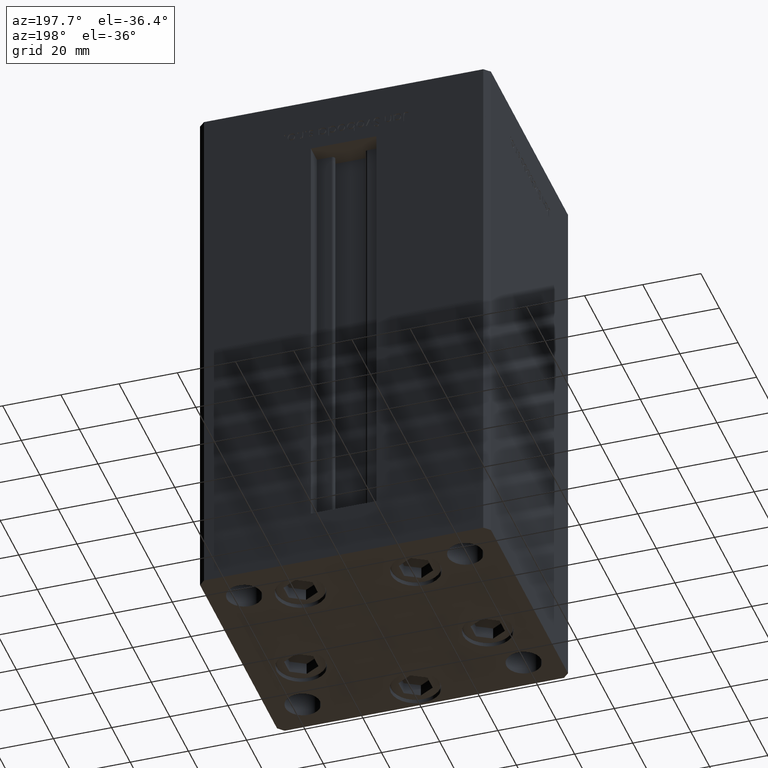
[diagram: clean part render]
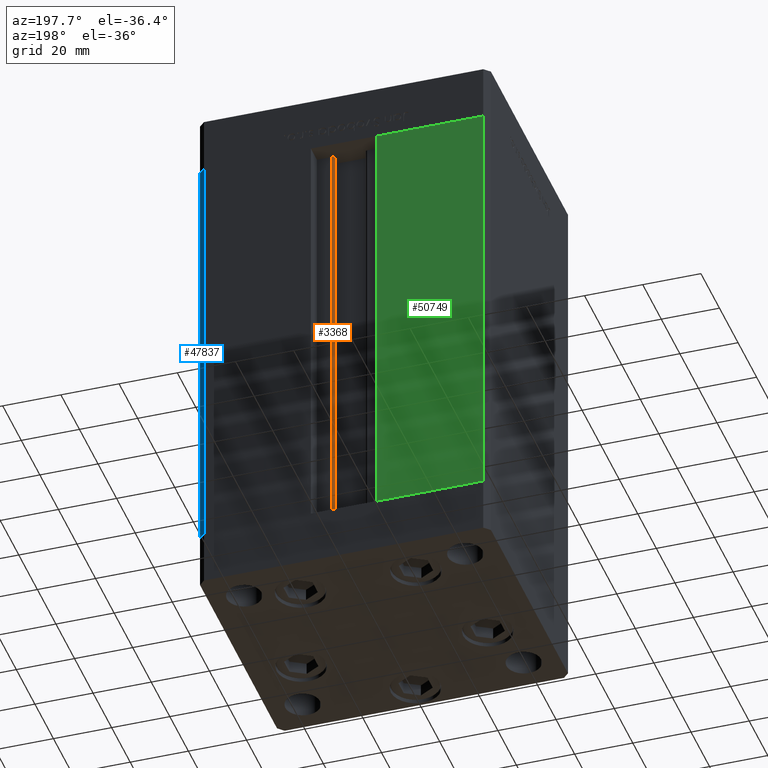
[diagram: same view with three faces highlighted in distinct colors, each labeled with its STEP entity id]
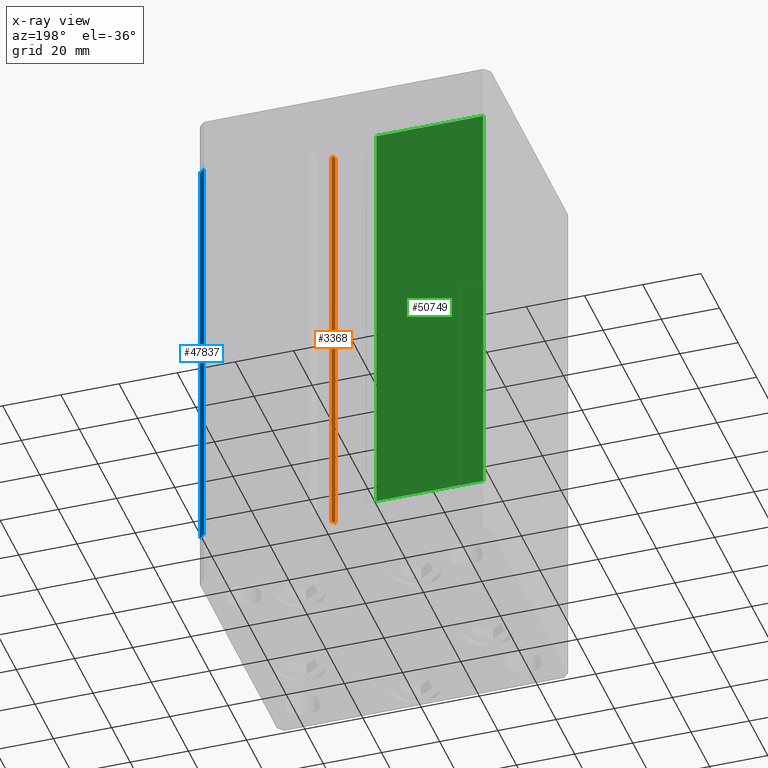
[diagram: x-ray of the same camera — body ghosted, the three highlighted faces saturated]
A machine part, auxiliary view with three faces highlighted in distinct colors.
The next image is the same camera in x-ray (body ghosted, the three faces saturated) — at least one of them is partly hidden behind the body in this view.
Their STEP definitions:

[orange] entity #3368 — the highlighted cylindrical surface (edge-blend (fillet) strip) has radius 0.9333 mm, axis along (0, 0, 1).
#46 = EDGE_CURVE ( 'NONE', #47562, #889, #6662, .T. ) ;
#315 = DIRECTION ( 'NONE',  ( -0.000000000000000000, -0.000000000000000000, 1.000000000000000000 ) ) ;
#534 = DIRECTION ( 'NONE',  ( 1.000000000000000000, 0.000000000000000000, 0.000000000000000000 ) ) ;
#710 = AXIS2_PLACEMENT_3D ( 'NONE', #45102, #37181, #534 ) ;
#889 = VERTEX_POINT ( 'NONE', #42222 ) ;
#1460 = CARTESIAN_POINT ( 'NONE',  ( 5.375042956467945388, 35.59999999999898534, 0.000000000000000000 ) ) ;
#3368 = ADVANCED_FACE ( 'NONE', ( #28994 ), #45368, .T. ) ;
#6034 = DIRECTION ( 'NONE',  ( -0.000000000000000000, -0.000000000000000000, -1.000000000000000000 ) ) ;
#6662 = CIRCLE ( 'NONE', #24346, 0.9333333333340008142 ) ;
#8656 = CARTESIAN_POINT ( 'NONE',  ( 6.183333333333997928, 36.06666666666598786, 148.5000000000000000 ) ) ;
#9414 = EDGE_CURVE ( 'NONE', #13175, #889, #13970, .T. ) ;
#9919 = VECTOR ( 'NONE', #315, 1000.000000000000000 ) ;
#13175 = VERTEX_POINT ( 'NONE', #50161 ) ;
#13423 = CIRCLE ( 'NONE', #42900, 0.9333333333340008142 ) ;
#13970 = LINE ( 'NONE', #14493, #40736 ) ;
#14493 = CARTESIAN_POINT ( 'NONE',  ( 6.183333333333997928, 36.99999999999999289, 0.000000000000000000 ) ) ;
#16652 = CARTESIAN_POINT ( 'NONE',  ( 5.375042956467945388, 35.59999999999898534, 0.000000000000000000 ) ) ;
#18150 = CARTESIAN_POINT ( 'NONE',  ( 6.183333333333997928, 36.06666666666598786, 0.000000000000000000 ) ) ;
#21015 = EDGE_LOOP ( 'NONE', ( #30644, #36270, #34879, #27318 ) ) ;
#24346 = AXIS2_PLACEMENT_3D ( 'NONE', #8656, #32403, #30904 ) ;
#26985 = EDGE_CURVE ( 'NONE', #30955, #47562, #31691, .T. ) ;
#27318 = ORIENTED_EDGE ( 'NONE', *, *, #46, .T. ) ;
#28994 = FACE_OUTER_BOUND ( 'NONE', #21015, .T. ) ;
#30056 = DIRECTION ( 'NONE',  ( -0.000000000000000000, -0.000000000000000000, 1.000000000000000000 ) ) ;
#30644 = ORIENTED_EDGE ( 'NONE', *, *, #9414, .F. ) ;
#30904 = DIRECTION ( 'NONE',  ( 1.000000000000000000, 0.000000000000000000, 0.000000000000000000 ) ) ;
#30955 = VERTEX_POINT ( 'NONE', #1460 ) ;
#31691 = LINE ( 'NONE', #16652, #9919 ) ;
#32403 = DIRECTION ( 'NONE',  ( 0.000000000000000000, 0.000000000000000000, -1.000000000000000000 ) ) ;
#34879 = ORIENTED_EDGE ( 'NONE', *, *, #26985, .T. ) ;
#36270 = ORIENTED_EDGE ( 'NONE', *, *, #37705, .F. ) ;
#37181 = DIRECTION ( 'NONE',  ( -0.000000000000000000, -0.000000000000000000, 1.000000000000000000 ) ) ;
#37705 = EDGE_CURVE ( 'NONE', #30955, #13175, #13423, .T. ) ;
#40736 = VECTOR ( 'NONE', #30056, 1000.000000000000000 ) ;
#42222 = CARTESIAN_POINT ( 'NONE',  ( 6.183333333333997928, 36.99999999999999289, 148.5000000000000000 ) ) ;
#42900 = AXIS2_PLACEMENT_3D ( 'NONE', #18150, #6034, #46897 ) ;
#45102 = CARTESIAN_POINT ( 'NONE',  ( 6.183333333333997928, 36.06666666666598786, 0.000000000000000000 ) ) ;
#45368 = CYLINDRICAL_SURFACE ( 'NONE', #710, 0.9333333333340008142 ) ;
#46897 = DIRECTION ( 'NONE',  ( 1.000000000000000000, 0.000000000000000000, 0.000000000000000000 ) ) ;
#47562 = VERTEX_POINT ( 'NONE', #47690 ) ;
#47690 = CARTESIAN_POINT ( 'NONE',  ( 5.375042956467942723, 35.59999999999898534, 148.5000000000000000 ) ) ;
#50161 = CARTESIAN_POINT ( 'NONE',  ( 6.183333333333997928, 36.99999999999999289, 0.000000000000000000 ) ) ;

[blue] entity #47837 — the highlighted planar face has unit normal (0.7071, 0.7071, 0).
#2053 = VECTOR ( 'NONE', #20610, 1000.000000000000000 ) ;
#2679 = VECTOR ( 'NONE', #24592, 1000.000000000000000 ) ;
#4019 = CARTESIAN_POINT ( 'NONE',  ( 48.00000000000000711, 43.50000000000000000, 148.5000000000000000 ) ) ;
#5349 = CARTESIAN_POINT ( 'NONE',  ( 48.00000000000000711, 43.50000000000000000, 148.5000000000000000 ) ) ;
#7528 = VERTEX_POINT ( 'NONE', #43525 ) ;
#8208 = LINE ( 'NONE', #44349, #25392 ) ;
#8751 = CARTESIAN_POINT ( 'NONE',  ( 48.00000000000000711, 43.50000000000000000, 148.5000000000000000 ) ) ;
#10834 = EDGE_CURVE ( 'NONE', #16159, #46296, #40152, .T. ) ;
#11623 = ORIENTED_EDGE ( 'NONE', *, *, #19900, .T. ) ;
#12460 = LINE ( 'NONE', #33748, #2679 ) ;
#13825 = ORIENTED_EDGE ( 'NONE', *, *, #10834, .T. ) ;
#16159 = VERTEX_POINT ( 'NONE', #8751 ) ;
#16686 = DIRECTION ( 'NONE',  ( 0.7071067811865463515, 0.7071067811865487940, -0.000000000000000000 ) ) ;
#18701 = AXIS2_PLACEMENT_3D ( 'NONE', #5349, #16686, #21165 ) ;
#19737 = CARTESIAN_POINT ( 'NONE',  ( 50.00000000000001421, 41.49999999999999289, 148.5000000000000000 ) ) ;
#19900 = EDGE_CURVE ( 'NONE', #46296, #7528, #36090, .T. ) ;
#20610 = DIRECTION ( 'NONE',  ( 0.7071067811865487940, -0.7071067811865463515, 0.000000000000000000 ) ) ;
#20683 = CARTESIAN_POINT ( 'NONE',  ( 48.00000000000000711, 43.50000000000000000, 0.000000000000000000 ) ) ;
#21165 = DIRECTION ( 'NONE',  ( -0.7071067811865487940, 0.7071067811865463515, 0.000000000000000000 ) ) ;
#24342 = FACE_OUTER_BOUND ( 'NONE', #28087, .T. ) ;
#24592 = DIRECTION ( 'NONE',  ( 0.7071067811865487940, -0.7071067811865463515, 0.000000000000000000 ) ) ;
#25392 = VECTOR ( 'NONE', #28505, 1000.000000000000000 ) ;
#28087 = EDGE_LOOP ( 'NONE', ( #38893, #30773, #13825, #11623 ) ) ;
#28223 = VECTOR ( 'NONE', #31863, 1000.000000000000000 ) ;
#28505 = DIRECTION ( 'NONE',  ( -0.000000000000000000, -0.000000000000000000, -1.000000000000000000 ) ) ;
#28551 = PLANE ( 'NONE',  #18701 ) ;
#29006 = VERTEX_POINT ( 'NONE', #20683 ) ;
#30773 = ORIENTED_EDGE ( 'NONE', *, *, #42341, .F. ) ;
#31863 = DIRECTION ( 'NONE',  ( -0.000000000000000000, -0.000000000000000000, -1.000000000000000000 ) ) ;
#33748 = CARTESIAN_POINT ( 'NONE',  ( 48.00000000000000711, 43.50000000000000000, 0.000000000000000000 ) ) ;
#34267 = CARTESIAN_POINT ( 'NONE',  ( 50.00000000000001421, 41.49999999999999289, 148.5000000000000000 ) ) ;
#36090 = LINE ( 'NONE', #19737, #28223 ) ;
#38893 = ORIENTED_EDGE ( 'NONE', *, *, #51969, .F. ) ;
#40152 = LINE ( 'NONE', #4019, #2053 ) ;
#42341 = EDGE_CURVE ( 'NONE', #16159, #29006, #8208, .T. ) ;
#43525 = CARTESIAN_POINT ( 'NONE',  ( 50.00000000000001421, 41.49999999999999289, 0.000000000000000000 ) ) ;
#44349 = CARTESIAN_POINT ( 'NONE',  ( 48.00000000000000711, 43.50000000000000000, 148.5000000000000000 ) ) ;
#46296 = VERTEX_POINT ( 'NONE', #34267 ) ;
#47837 = ADVANCED_FACE ( 'NONE', ( #24342 ), #28551, .T. ) ;
#51969 = EDGE_CURVE ( 'NONE', #29006, #7528, #12460, .T. ) ;

[green] entity #50749 — the highlighted planar face has unit normal (0, -1, 0).
#559 = CARTESIAN_POINT ( 'NONE',  ( -11.24999999999999822, 43.50000000000000000, 0.000000000000000000 ) ) ;
#2189 = DIRECTION ( 'NONE',  ( -0.000000000000000000, -0.000000000000000000, -1.000000000000000000 ) ) ;
#4023 = DIRECTION ( 'NONE',  ( 0.000000000000000000, -1.000000000000000000, 0.000000000000000000 ) ) ;
#4539 = CARTESIAN_POINT ( 'NONE',  ( -11.24999999999999822, 43.50000000000000000, 148.5000000000000000 ) ) ;
#9819 = VERTEX_POINT ( 'NONE', #21765 ) ;
#11927 = PLANE ( 'NONE',  #31257 ) ;
#12419 = LINE ( 'NONE', #559, #43843 ) ;
#16216 = CARTESIAN_POINT ( 'NONE',  ( -48.00000000000000711, 43.50000000000000000, 0.000000000000000000 ) ) ;
#16640 = DIRECTION ( 'NONE',  ( -1.000000000000000000, 0.000000000000000000, 0.000000000000000000 ) ) ;
#18317 = VERTEX_POINT ( 'NONE', #16216 ) ;
#19860 = VECTOR ( 'NONE', #2189, 1000.000000000000000 ) ;
#21672 = EDGE_CURVE ( 'NONE', #51467, #18317, #37796, .T. ) ;
#21765 = CARTESIAN_POINT ( 'NONE',  ( -11.24999999999999822, 43.50000000000000000, 0.000000000000000000 ) ) ;
#23282 = CARTESIAN_POINT ( 'NONE',  ( -11.24999999999999822, 43.50000000000000000, 0.000000000000000000 ) ) ;
#25868 = DIRECTION ( 'NONE',  ( 1.000000000000000000, 0.000000000000000000, 0.000000000000000000 ) ) ;
#30191 = ORIENTED_EDGE ( 'NONE', *, *, #21672, .F. ) ;
#31257 = AXIS2_PLACEMENT_3D ( 'NONE', #4539, #4023, #36969 ) ;
#31982 = DIRECTION ( 'NONE',  ( -0.000000000000000000, -0.000000000000000000, 1.000000000000000000 ) ) ;
#32741 = CARTESIAN_POINT ( 'NONE',  ( -11.24999999999999822, 43.50000000000000000, 148.5000000000000000 ) ) ;
#34671 = VERTEX_POINT ( 'NONE', #35388 ) ;
#35388 = CARTESIAN_POINT ( 'NONE',  ( -11.24999999999999822, 43.50000000000000000, 148.5000000000000000 ) ) ;
#36960 = LINE ( 'NONE', #32741, #49173 ) ;
#36969 = DIRECTION ( 'NONE',  ( 0.000000000000000000, -0.000000000000000000, -1.000000000000000000 ) ) ;
#37407 = EDGE_CURVE ( 'NONE', #51467, #34671, #36960, .T. ) ;
#37796 = LINE ( 'NONE', #41749, #19860 ) ;
#38927 = CARTESIAN_POINT ( 'NONE',  ( -48.00000000000000711, 43.50000000000000000, 148.5000000000000000 ) ) ;
#39857 = ORIENTED_EDGE ( 'NONE', *, *, #37407, .T. ) ;
#40394 = EDGE_CURVE ( 'NONE', #9819, #18317, #12419, .T. ) ;
#40546 = EDGE_LOOP ( 'NONE', ( #39857, #42513, #49134, #30191 ) ) ;
#40671 = FACE_OUTER_BOUND ( 'NONE', #40546, .T. ) ;
#41749 = CARTESIAN_POINT ( 'NONE',  ( -48.00000000000000711, 43.50000000000000000, 148.5000000000000000 ) ) ;
#42513 = ORIENTED_EDGE ( 'NONE', *, *, #51765, .F. ) ;
#43843 = VECTOR ( 'NONE', #16640, 1000.000000000000000 ) ;
#43861 = LINE ( 'NONE', #23282, #43926 ) ;
#43926 = VECTOR ( 'NONE', #31982, 1000.000000000000000 ) ;
#49134 = ORIENTED_EDGE ( 'NONE', *, *, #40394, .T. ) ;
#49173 = VECTOR ( 'NONE', #25868, 1000.000000000000000 ) ;
#50749 = ADVANCED_FACE ( 'NONE', ( #40671 ), #11927, .F. ) ;
#51467 = VERTEX_POINT ( 'NONE', #38927 ) ;
#51765 = EDGE_CURVE ( 'NONE', #9819, #34671, #43861, .T. ) ;